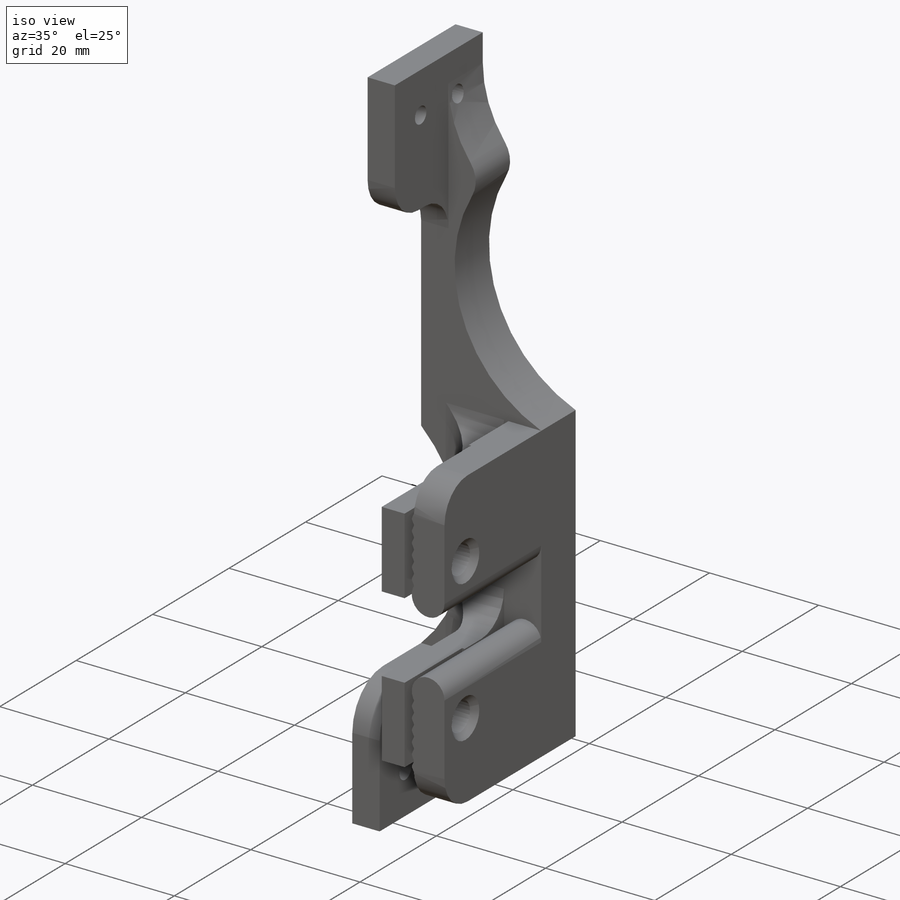
[diagram: iso view]
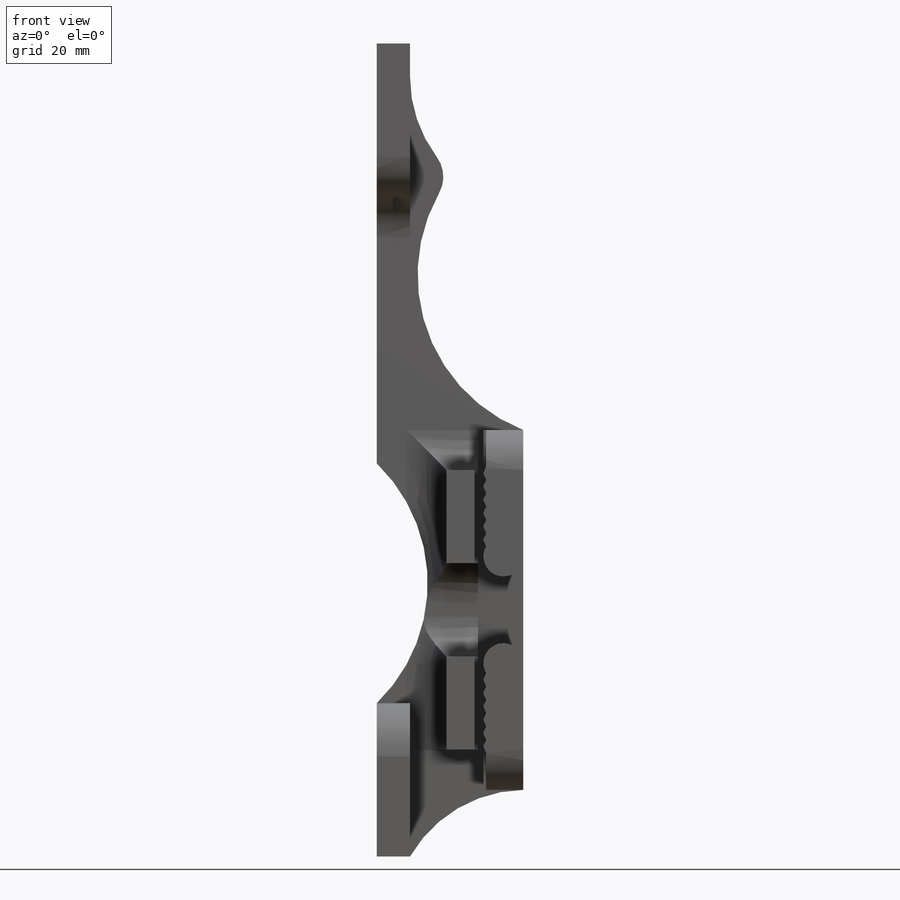
[diagram: front view]
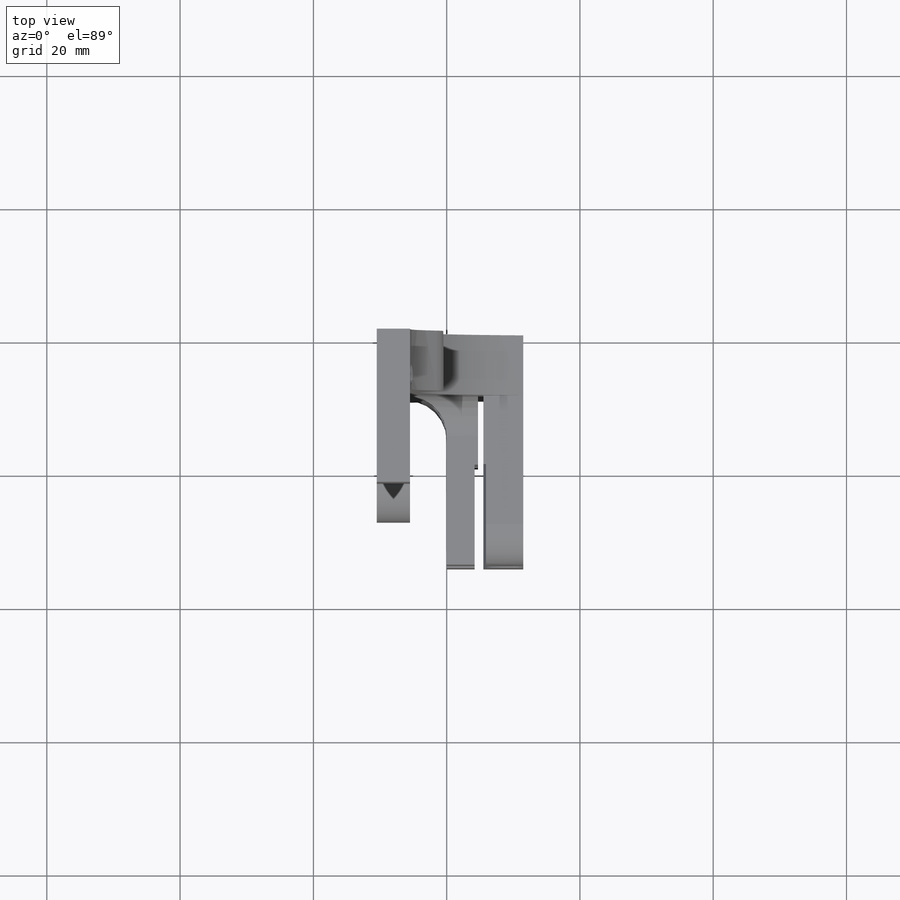
[diagram: top view]
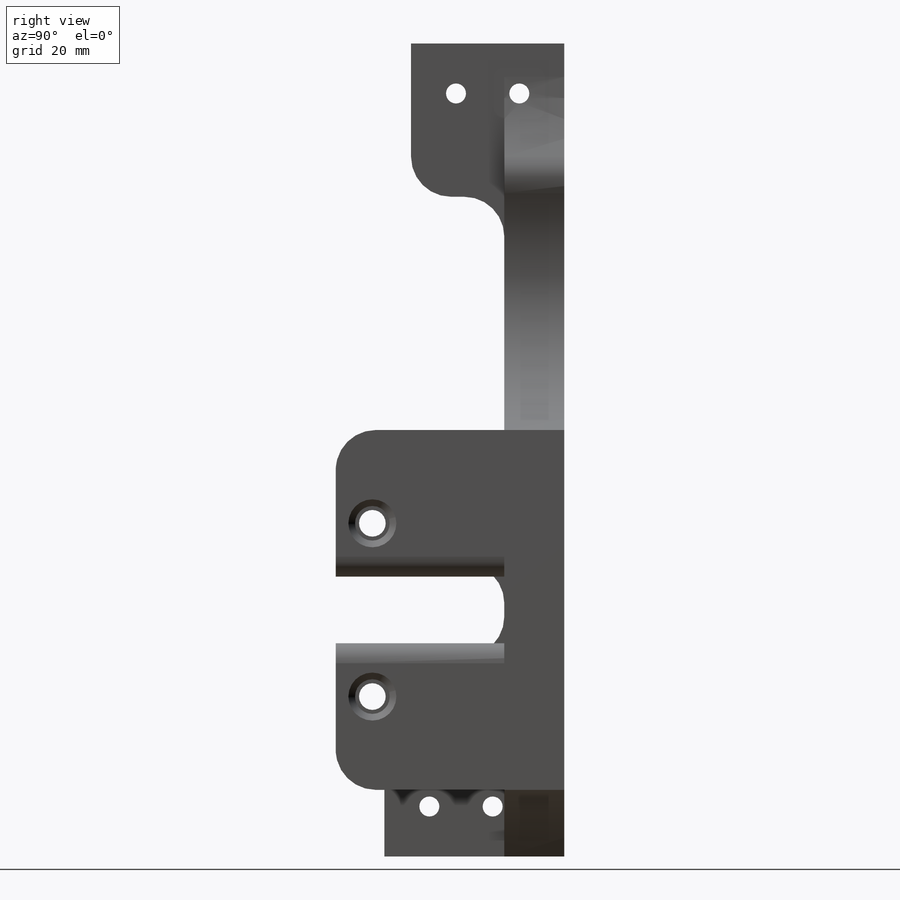
[diagram: right view]
SOLIDWORKS PART (.sldprt)
format: sldprt  version: not decoded by parser v0  size: 611,328 bytes
history: native  units: mm
features: sketch x12, extrude x6, cut_extrude x6, fillet x2, material x1, mirror x1, chamfer x1 (+11 scaffold rows collapsed)
feature tree (40):
  scaffold x11  (default folders/planes/origin — collapsed)
  material  "Material <not specified>"
  sketch  "Sketch1"  dims[c1.D1=~9.457388mm c1.D2=23.0mm c1.D3=5.0mm c1.D4=5.0mm c1.D5=37.0mm c1.D6=85.0mm c1.D7=11.5mm c2.D1=10.5mm c2.D8=27.0mm c2.D9=27.0mm]
  extrude  "Boss-Extrude1"  Depth=9mm
  sketch  "Sketch2"  dims[c1.D2=3.0mm c1.D1=16.0mm c1.D3=5.5mm c1.D4=19.0mm c1.D5=~16.066954mm c1.D6=14.0mm c1.D7=14.0mm c2.D5=1.3mm]
  extrude  "Boss-Extrude2"  Depth=25.3mm
  sketch  "Sketch3"
  extrude  "Boss-Extrude3"  Depth=18mm
  sketch  "Sketch4"  dims[D2=3.0mm D1=7.5mm D3=9.5mm D4=11.5mm]
  cut_extrude  "Cut-Extrude1"  Depth=14mm
  sketch  "Sketch5"  dims[D1=23.0mm]
  extrude  "Boss-Extrude4"  Depth=14mm
  sketch  "Sketch7"  dims[D1=5.2mm D2=10.0mm D4=20.0mm D5=25.0mm D6=25.0mm D7=20.0mm D3=20.0mm]
  extrude  "Boss-Extrude5"  [1 undecoded]
  sketch  "Sketch6"  dims[D1=3.0mm D2=9.5mm D3=7.5mm]
  cut_extrude  "Cut-Extrude2"  Depth=14mm
  sketch  "Sketch8"  dims[D1=5.2mm D2=5.0mm D3=26.0mm D4=26.0mm D5=1.0mm D6=1.0mm]
  cut_extrude  "Cut-Extrude3"  Depth=7mm
  sketch  "Sketch9"  dims[D1=0.8mm]
  extrude  "Boss-Extrude6"  Depth=15mm
  sketch  "Sketch10"  dims[D2=4.0mm D1=26.0mm D3=5.5mm]
  cut_extrude  "Cut-Extrude4"  Depth=15mm
  fillet  "Fillet1"  Radius=8mm
  sketch  "Sketch12"  dims[D3=0.6mm D5=0.3mm D1=1.5mm D2=0.4mm D4=1.0mm D6=1.0mm D7=1.0mm D8=1.0mm D9=1.0mm D10=1.0mm D11=1.0mm D12=1.0mm D13=1.0mm D14=1.0mm D15=1.0mm D16=1.0mm]
  cut_extrude  "Cut-Extrude5"  [1 undecoded]
  mirror  "Mirror1"
  sketch  "Sketch13"  dims[D1=5.2mm]
  cut_extrude  "Cut-Extrude6"  Depth=6mm
  fillet  "Fillet2"  Radius=6mm
  chamfer  "Chamfer1"  Distance=1mm Angle=45deg
decode coverage: 24 of 28 modeling features carry decoded parameters
note: ~ marks probable driven/reference dimensions
note: 2 parameter values undecoded
note: suppression state not decoded; provenance and decode notes live in map.json
